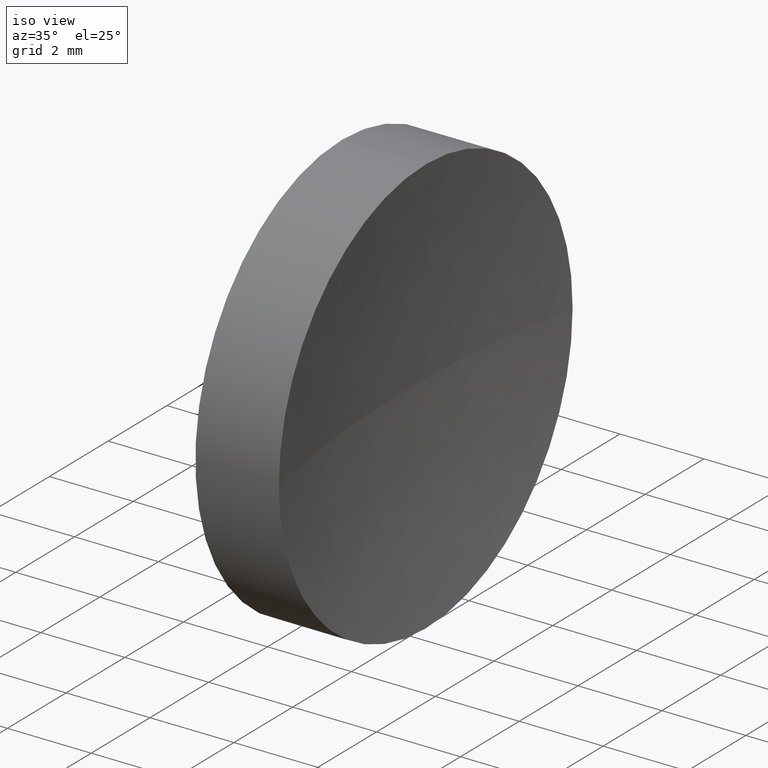
[diagram: clean part render]
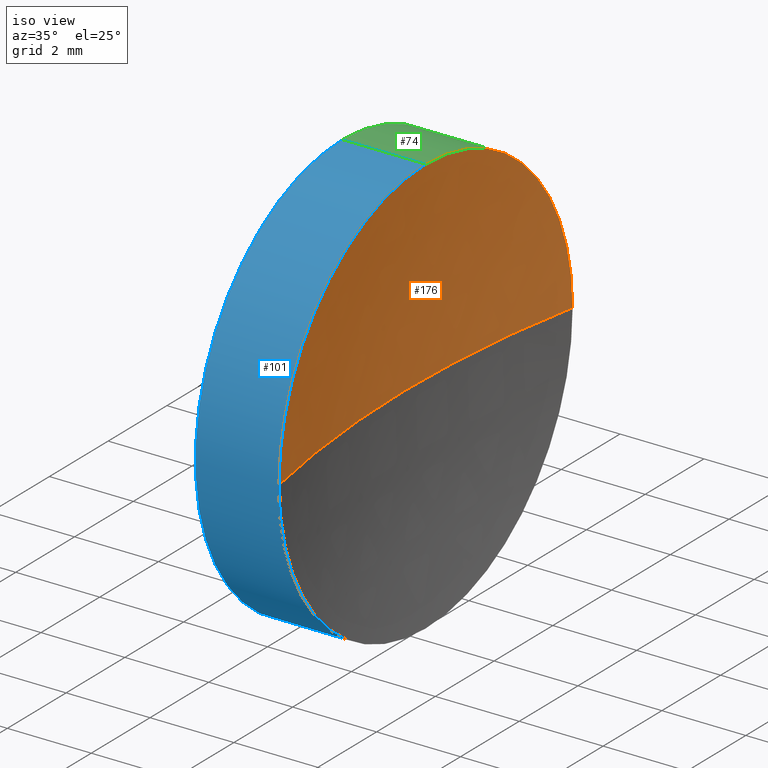
[diagram: same view with three faces highlighted in distinct colors, each labeled with its STEP entity id]
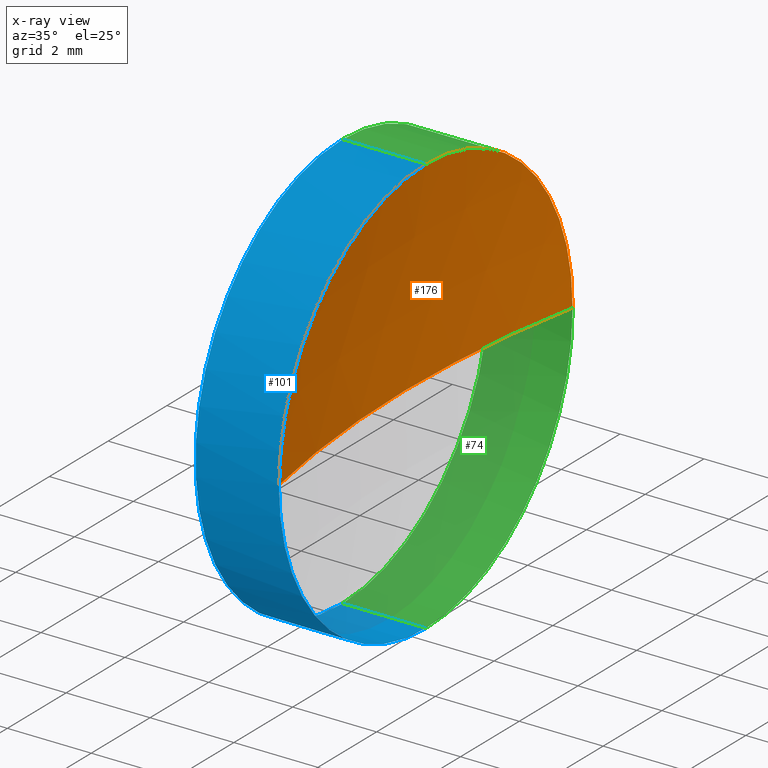
[diagram: x-ray of the same camera — body ghosted, the three highlighted faces saturated]
A machine part, iso view with three faces highlighted in distinct colors.
The next image is the same camera in x-ray (body ghosted, the three faces saturated) — at least one of them is partly hidden behind the body in this view.
Their STEP definitions:

[orange] entity #176 — the highlighted spherical surface has radius 25.7551 mm.
#11 = CARTESIAN_POINT ( 'NONE',  ( 46.30958549791029800, 26.08904114919495900, 5.000000000000000900 ) ) ;
#13 = ORIENTED_EDGE ( 'NONE', *, *, #125, .F. ) ;
#16 = VERTEX_POINT ( 'NONE', #76 ) ;
#29 = CARTESIAN_POINT ( 'NONE',  ( 46.30958549791029800, 26.08904114919495900, 0.0000000000000000000 ) ) ;
#30 = CARTESIAN_POINT ( 'NONE',  ( 46.30958549791029800, 21.08904114919496200, 0.0000000000000000000 ) ) ;
#50 = ORIENTED_EDGE ( 'NONE', *, *, #93, .F. ) ;
#51 = AXIS2_PLACEMENT_3D ( 'NONE', #54, #81, #170 ) ;
#54 = CARTESIAN_POINT ( 'NONE',  ( 71.57467329231487000, 26.08904114919495900, 0.0000000000000000000 ) ) ;
#62 = VERTEX_POINT ( 'NONE', #143 ) ;
#65 = EDGE_CURVE ( 'NONE', #150, #62, #78, .T. ) ;
#67 = CARTESIAN_POINT ( 'NONE',  ( 46.30958549791029800, 26.08904114919495900, 0.0000000000000000000 ) ) ;
#68 = FACE_OUTER_BOUND ( 'NONE', #142, .T. ) ;
#69 = CIRCLE ( 'NONE', #51, 25.75509000681168500 ) ;
#75 = DIRECTION ( 'NONE',  ( -1.000000000000000000, 0.0000000000000000000, 0.0000000000000000000 ) ) ;
#76 = CARTESIAN_POINT ( 'NONE',  ( 46.30958549791029800, 31.08904114919495500, 6.123233995736764300E-016 ) ) ;
#78 = CIRCLE ( 'NONE', #180, 25.75509000681168500 ) ;
#80 = AXIS2_PLACEMENT_3D ( 'NONE', #144, #157, #147 ) ;
#81 = DIRECTION ( 'NONE',  ( 0.0000000000000000000, -1.224646799147353200E-016, 1.000000000000000000 ) ) ;
#84 = CIRCLE ( 'NONE', #178, 5.000000000000000900 ) ;
#91 = AXIS2_PLACEMENT_3D ( 'NONE', #29, #183, #96 ) ;
#93 = EDGE_CURVE ( 'NONE', #16, #62, #69, .T. ) ;
#96 = DIRECTION ( 'NONE',  ( 0.0000000000000000000, 0.0000000000000000000, 1.000000000000000000 ) ) ;
#104 = EDGE_CURVE ( 'NONE', #119, #16, #84, .T. ) ;
#119 = VERTEX_POINT ( 'NONE', #11 ) ;
#125 = EDGE_CURVE ( 'NONE', #150, #119, #149, .T. ) ;
#132 = DIRECTION ( 'NONE',  ( 0.0000000000000000000, 0.0000000000000000000, 1.000000000000000000 ) ) ;
#142 = EDGE_LOOP ( 'NONE', ( #50, #166, #13, #175 ) ) ;
#143 = CARTESIAN_POINT ( 'NONE',  ( 45.81958328550318500, 26.08904114919495900, 0.0000000000000000000 ) ) ;
#144 = CARTESIAN_POINT ( 'NONE',  ( 71.57467329231487000, 26.08904114919495900, 0.0000000000000000000 ) ) ;
#147 = DIRECTION ( 'NONE',  ( 0.0000000000000000000, -1.000000000000000000, 0.0000000000000000000 ) ) ;
#149 = CIRCLE ( 'NONE', #91, 5.000000000000000900 ) ;
#150 = VERTEX_POINT ( 'NONE', #30 ) ;
#154 = CARTESIAN_POINT ( 'NONE',  ( 71.57467329231487000, 26.08904114919495900, 0.0000000000000000000 ) ) ;
#157 = DIRECTION ( 'NONE',  ( 0.0000000000000000000, 0.0000000000000000000, 1.000000000000000000 ) ) ;
#158 = DIRECTION ( 'NONE',  ( -1.000000000000000000, -0.0000000000000000000, -0.0000000000000000000 ) ) ;
#166 = ORIENTED_EDGE ( 'NONE', *, *, #104, .F. ) ;
#170 = DIRECTION ( 'NONE',  ( 0.0000000000000000000, -1.000000000000000000, -1.224646799147353200E-016 ) ) ;
#172 = SPHERICAL_SURFACE ( 'NONE', #80, 25.75509000681168500 ) ;
#175 = ORIENTED_EDGE ( 'NONE', *, *, #65, .T. ) ;
#176 = ADVANCED_FACE ( 'NONE', ( #68 ), #172, .F. ) ;
#178 = AXIS2_PLACEMENT_3D ( 'NONE', #67, #158, #132 ) ;
#179 = DIRECTION ( 'NONE',  ( 0.0000000000000000000, 0.0000000000000000000, -1.000000000000000000 ) ) ;
#180 = AXIS2_PLACEMENT_3D ( 'NONE', #154, #179, #75 ) ;
#183 = DIRECTION ( 'NONE',  ( -1.000000000000000000, -0.0000000000000000000, -0.0000000000000000000 ) ) ;

[blue] entity #101 — the highlighted cylindrical surface (partial cylindrical patch) has radius 5 mm, axis along (-1, -0, -0).
#6 = ORIENTED_EDGE ( 'NONE', *, *, #85, .F. ) ;
#9 = FACE_OUTER_BOUND ( 'NONE', #34, .T. ) ;
#10 = DIRECTION ( 'NONE',  ( -1.000000000000000000, -0.0000000000000000000, -0.0000000000000000000 ) ) ;
#11 = CARTESIAN_POINT ( 'NONE',  ( 46.30958549791029800, 26.08904114919495900, 5.000000000000000900 ) ) ;
#12 = AXIS2_PLACEMENT_3D ( 'NONE', #53, #56, #111 ) ;
#21 = CARTESIAN_POINT ( 'NONE',  ( 46.30958549791029800, 26.08904114919495900, 0.0000000000000000000 ) ) ;
#22 = DIRECTION ( 'NONE',  ( -1.000000000000000000, -0.0000000000000000000, -0.0000000000000000000 ) ) ;
#26 = VECTOR ( 'NONE', #135, 1000.000000000000000 ) ;
#29 = CARTESIAN_POINT ( 'NONE',  ( 46.30958549791029800, 26.08904114919495900, 0.0000000000000000000 ) ) ;
#30 = CARTESIAN_POINT ( 'NONE',  ( 46.30958549791029800, 21.08904114919496200, 0.0000000000000000000 ) ) ;
#34 = EDGE_LOOP ( 'NONE', ( #117, #58, #89, #156, #6 ) ) ;
#36 = VERTEX_POINT ( 'NONE', #164 ) ;
#41 = CARTESIAN_POINT ( 'NONE',  ( 42.44986111413682300, 26.08904114919495900, 5.000000000000000900 ) ) ;
#43 = CARTESIAN_POINT ( 'NONE',  ( 42.44986111413682300, 26.08904114919495900, -5.000000000000000900 ) ) ;
#49 = LINE ( 'NONE', #43, #118 ) ;
#52 = CARTESIAN_POINT ( 'NONE',  ( 42.44986111413682300, 26.08904114919495900, 0.0000000000000000000 ) ) ;
#53 = CARTESIAN_POINT ( 'NONE',  ( 44.31958549791029600, 26.08904114919495900, 0.0000000000000000000 ) ) ;
#56 = DIRECTION ( 'NONE',  ( -1.000000000000000000, -0.0000000000000000000, -0.0000000000000000000 ) ) ;
#57 = CIRCLE ( 'NONE', #12, 5.000000000000000900 ) ;
#58 = ORIENTED_EDGE ( 'NONE', *, *, #71, .T. ) ;
#59 = DIRECTION ( 'NONE',  ( 0.0000000000000000000, 0.0000000000000000000, 1.000000000000000000 ) ) ;
#71 = EDGE_CURVE ( 'NONE', #79, #150, #124, .T. ) ;
#79 = VERTEX_POINT ( 'NONE', #127 ) ;
#85 = EDGE_CURVE ( 'NONE', #87, #36, #57, .T. ) ;
#87 = VERTEX_POINT ( 'NONE', #110 ) ;
#88 = LINE ( 'NONE', #41, #26 ) ;
#89 = ORIENTED_EDGE ( 'NONE', *, *, #125, .T. ) ;
#91 = AXIS2_PLACEMENT_3D ( 'NONE', #29, #183, #96 ) ;
#96 = DIRECTION ( 'NONE',  ( 0.0000000000000000000, 0.0000000000000000000, 1.000000000000000000 ) ) ;
#99 = EDGE_CURVE ( 'NONE', #119, #36, #88, .T. ) ;
#101 = ADVANCED_FACE ( 'NONE', ( #9 ), #116, .T. ) ;
#106 = DIRECTION ( 'NONE',  ( 0.0000000000000000000, 0.0000000000000000000, 1.000000000000000000 ) ) ;
#110 = CARTESIAN_POINT ( 'NONE',  ( 44.31958549791029600, 26.08904114919495900, -5.000000000000000900 ) ) ;
#111 = DIRECTION ( 'NONE',  ( 0.0000000000000000000, 0.0000000000000000000, 1.000000000000000000 ) ) ;
#115 = EDGE_CURVE ( 'NONE', #79, #87, #49, .T. ) ;
#116 = CYLINDRICAL_SURFACE ( 'NONE', #186, 5.000000000000000900 ) ;
#117 = ORIENTED_EDGE ( 'NONE', *, *, #115, .F. ) ;
#118 = VECTOR ( 'NONE', #10, 1000.000000000000000 ) ;
#119 = VERTEX_POINT ( 'NONE', #11 ) ;
#124 = CIRCLE ( 'NONE', #167, 5.000000000000000900 ) ;
#125 = EDGE_CURVE ( 'NONE', #150, #119, #149, .T. ) ;
#127 = CARTESIAN_POINT ( 'NONE',  ( 46.30958549791029800, 26.08904114919495900, -5.000000000000000900 ) ) ;
#130 = DIRECTION ( 'NONE',  ( -1.000000000000000000, -0.0000000000000000000, -0.0000000000000000000 ) ) ;
#135 = DIRECTION ( 'NONE',  ( -1.000000000000000000, -0.0000000000000000000, -0.0000000000000000000 ) ) ;
#149 = CIRCLE ( 'NONE', #91, 5.000000000000000900 ) ;
#150 = VERTEX_POINT ( 'NONE', #30 ) ;
#156 = ORIENTED_EDGE ( 'NONE', *, *, #99, .T. ) ;
#164 = CARTESIAN_POINT ( 'NONE',  ( 44.31958549791029600, 26.08904114919495900, 5.000000000000000900 ) ) ;
#167 = AXIS2_PLACEMENT_3D ( 'NONE', #21, #130, #106 ) ;
#183 = DIRECTION ( 'NONE',  ( -1.000000000000000000, -0.0000000000000000000, -0.0000000000000000000 ) ) ;
#186 = AXIS2_PLACEMENT_3D ( 'NONE', #52, #22, #59 ) ;

[green] entity #74 — the highlighted cylindrical surface (partial cylindrical patch) has radius 5 mm, axis along (-1, -0, -0).
#5 = AXIS2_PLACEMENT_3D ( 'NONE', #44, #24, #114 ) ;
#10 = DIRECTION ( 'NONE',  ( -1.000000000000000000, -0.0000000000000000000, -0.0000000000000000000 ) ) ;
#11 = CARTESIAN_POINT ( 'NONE',  ( 46.30958549791029800, 26.08904114919495900, 5.000000000000000900 ) ) ;
#16 = VERTEX_POINT ( 'NONE', #76 ) ;
#18 = AXIS2_PLACEMENT_3D ( 'NONE', #86, #169, #55 ) ;
#24 = DIRECTION ( 'NONE',  ( -1.000000000000000000, -0.0000000000000000000, -0.0000000000000000000 ) ) ;
#26 = VECTOR ( 'NONE', #135, 1000.000000000000000 ) ;
#35 = AXIS2_PLACEMENT_3D ( 'NONE', #126, #77, #109 ) ;
#36 = VERTEX_POINT ( 'NONE', #164 ) ;
#41 = CARTESIAN_POINT ( 'NONE',  ( 42.44986111413682300, 26.08904114919495900, 5.000000000000000900 ) ) ;
#43 = CARTESIAN_POINT ( 'NONE',  ( 42.44986111413682300, 26.08904114919495900, -5.000000000000000900 ) ) ;
#44 = CARTESIAN_POINT ( 'NONE',  ( 46.30958549791029800, 26.08904114919495900, 0.0000000000000000000 ) ) ;
#46 = CIRCLE ( 'NONE', #18, 5.000000000000000900 ) ;
#49 = LINE ( 'NONE', #43, #118 ) ;
#55 = DIRECTION ( 'NONE',  ( 0.0000000000000000000, 0.0000000000000000000, 1.000000000000000000 ) ) ;
#67 = CARTESIAN_POINT ( 'NONE',  ( 46.30958549791029800, 26.08904114919495900, 0.0000000000000000000 ) ) ;
#72 = ORIENTED_EDGE ( 'NONE', *, *, #120, .T. ) ;
#74 = ADVANCED_FACE ( 'NONE', ( #152 ), #134, .T. ) ;
#76 = CARTESIAN_POINT ( 'NONE',  ( 46.30958549791029800, 31.08904114919495500, 6.123233995736764300E-016 ) ) ;
#77 = DIRECTION ( 'NONE',  ( -1.000000000000000000, -0.0000000000000000000, -0.0000000000000000000 ) ) ;
#79 = VERTEX_POINT ( 'NONE', #127 ) ;
#84 = CIRCLE ( 'NONE', #178, 5.000000000000000900 ) ;
#86 = CARTESIAN_POINT ( 'NONE',  ( 44.31958549791029600, 26.08904114919495900, 0.0000000000000000000 ) ) ;
#87 = VERTEX_POINT ( 'NONE', #110 ) ;
#88 = LINE ( 'NONE', #41, #26 ) ;
#97 = EDGE_LOOP ( 'NONE', ( #72, #102, #153, #122, #121 ) ) ;
#99 = EDGE_CURVE ( 'NONE', #119, #36, #88, .T. ) ;
#102 = ORIENTED_EDGE ( 'NONE', *, *, #115, .T. ) ;
#104 = EDGE_CURVE ( 'NONE', #119, #16, #84, .T. ) ;
#107 = CIRCLE ( 'NONE', #5, 5.000000000000000900 ) ;
#109 = DIRECTION ( 'NONE',  ( 0.0000000000000000000, 0.0000000000000000000, 1.000000000000000000 ) ) ;
#110 = CARTESIAN_POINT ( 'NONE',  ( 44.31958549791029600, 26.08904114919495900, -5.000000000000000900 ) ) ;
#114 = DIRECTION ( 'NONE',  ( 0.0000000000000000000, 0.0000000000000000000, 1.000000000000000000 ) ) ;
#115 = EDGE_CURVE ( 'NONE', #79, #87, #49, .T. ) ;
#118 = VECTOR ( 'NONE', #10, 1000.000000000000000 ) ;
#119 = VERTEX_POINT ( 'NONE', #11 ) ;
#120 = EDGE_CURVE ( 'NONE', #16, #79, #107, .T. ) ;
#121 = ORIENTED_EDGE ( 'NONE', *, *, #104, .T. ) ;
#122 = ORIENTED_EDGE ( 'NONE', *, *, #99, .F. ) ;
#126 = CARTESIAN_POINT ( 'NONE',  ( 42.44986111413682300, 26.08904114919495900, 0.0000000000000000000 ) ) ;
#127 = CARTESIAN_POINT ( 'NONE',  ( 46.30958549791029800, 26.08904114919495900, -5.000000000000000900 ) ) ;
#132 = DIRECTION ( 'NONE',  ( 0.0000000000000000000, 0.0000000000000000000, 1.000000000000000000 ) ) ;
#134 = CYLINDRICAL_SURFACE ( 'NONE', #35, 5.000000000000000900 ) ;
#135 = DIRECTION ( 'NONE',  ( -1.000000000000000000, -0.0000000000000000000, -0.0000000000000000000 ) ) ;
#151 = EDGE_CURVE ( 'NONE', #36, #87, #46, .T. ) ;
#152 = FACE_OUTER_BOUND ( 'NONE', #97, .T. ) ;
#153 = ORIENTED_EDGE ( 'NONE', *, *, #151, .F. ) ;
#158 = DIRECTION ( 'NONE',  ( -1.000000000000000000, -0.0000000000000000000, -0.0000000000000000000 ) ) ;
#164 = CARTESIAN_POINT ( 'NONE',  ( 44.31958549791029600, 26.08904114919495900, 5.000000000000000900 ) ) ;
#169 = DIRECTION ( 'NONE',  ( -1.000000000000000000, -0.0000000000000000000, -0.0000000000000000000 ) ) ;
#178 = AXIS2_PLACEMENT_3D ( 'NONE', #67, #158, #132 ) ;